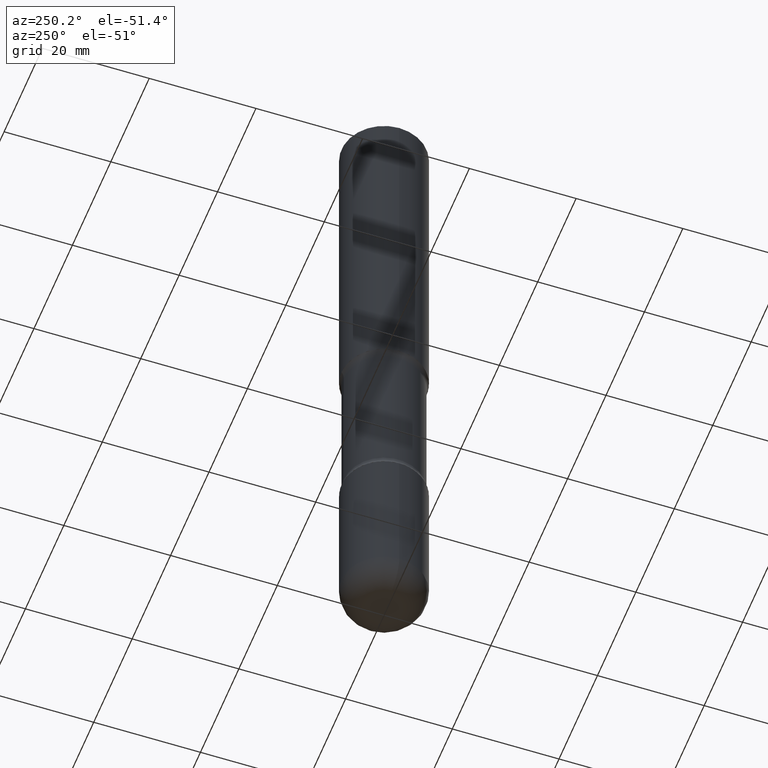
[diagram: clean part render]
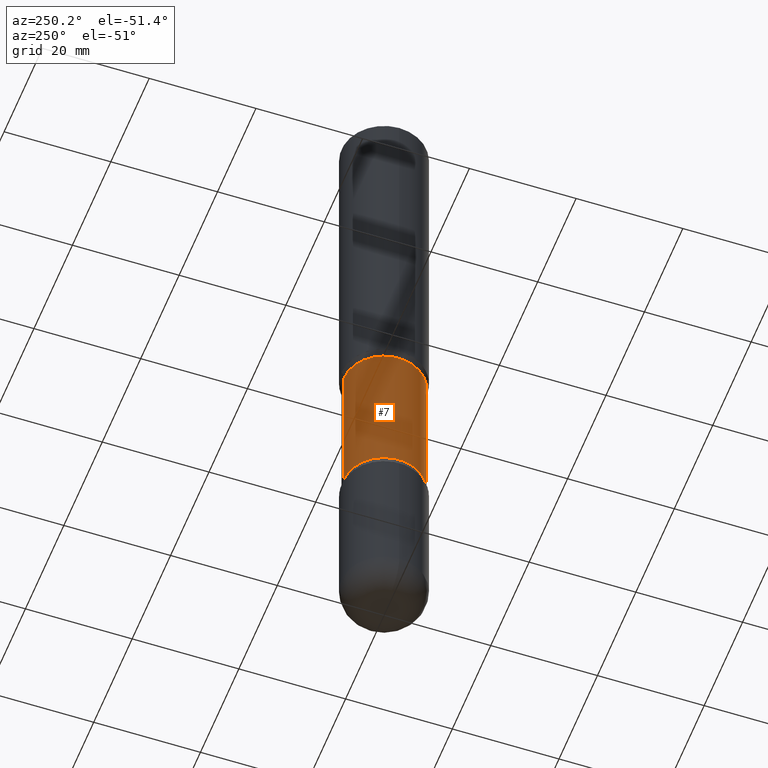
[diagram: same view with one face highlighted and labeled with its STEP entity id]
A machine part, auxiliary view. The second image highlights one B-rep face of the part: STEP entity #7.
In plain terms, the highlighted cylindrical surface (partial cylindrical patch) has radius 7.5406 mm, axis along (0, -0, -1).
Its self-contained STEP definition (entity closure, byte-faithful):
#2 = EDGE_CURVE ( 'NONE', #33, #457, #225, .T. ) ;
#7 = ADVANCED_FACE ( 'NONE', ( #261 ), #96, .T. ) ;
#12 = CARTESIAN_POINT ( 'NONE',  ( 2.073067044938200360E-15, 0.2968749999999871214, -3.689484635215509289 ) ) ;
#14 = CARTESIAN_POINT ( 'NONE',  ( 2.073067044938233492E-15, 0.2968749999999827360, -5.000000000000000888 ) ) ;
#26 = DIRECTION ( 'NONE',  ( 2.521457479434076939E-29, -3.382661233743975076E-15, -1.000000000000000000 ) ) ;
#33 = VERTEX_POINT ( 'NONE', #477 ) ;
#44 = CARTESIAN_POINT ( 'NONE',  ( -2.090307983695953569E-15, -0.2968750000000091038, -2.560515364784489822 ) ) ;
#46 = EDGE_CURVE ( 'NONE', #215, #33, #297, .T. ) ;
#49 = CARTESIAN_POINT ( 'NONE',  ( 6.171273093058203090E-29, -9.069431456984199816E-15, -2.560515364784490711 ) ) ;
#67 = CARTESIAN_POINT ( 'NONE',  ( -2.036710343088299976E-15, -0.2968750000000173195, -4.999999999999999112 ) ) ;
#86 = DIRECTION ( 'NONE',  ( 2.521457479434076939E-29, -3.382661233743975076E-15, -1.000000000000000000 ) ) ;
#96 = CYLINDRICAL_SURFACE ( 'NONE', #152, 0.2968750000000000000 ) ;
#112 = DIRECTION ( 'NONE',  ( 2.521457479434076939E-29, -3.382661233743974681E-15, -1.000000000000000000 ) ) ;
#119 = VECTOR ( 'NONE', #112, 39.37007874015748143 ) ;
#152 = AXIS2_PLACEMENT_3D ( 'NONE', #212, #440, #519 ) ;
#180 = EDGE_LOOP ( 'NONE', ( #204, #482, #308, #340 ) ) ;
#188 = VECTOR ( 'NONE', #489, 39.37007874015748143 ) ;
#204 = ORIENTED_EDGE ( 'NONE', *, *, #46, .F. ) ;
#212 = CARTESIAN_POINT ( 'NONE',  ( 1.232232987248685960E-28, -1.732138156284176685E-14, -5.000000000000000000 ) ) ;
#213 = EDGE_CURVE ( 'NONE', #215, #550, #267, .T. ) ;
#215 = VERTEX_POINT ( 'NONE', #44 ) ;
#225 = CIRCLE ( 'NONE', #532, 0.2968750000000000000 ) ;
#261 = FACE_OUTER_BOUND ( 'NONE', #180, .T. ) ;
#267 = CIRCLE ( 'NONE', #492, 0.2968750000000000000 ) ;
#297 = LINE ( 'NONE', #67, #119 ) ;
#308 = ORIENTED_EDGE ( 'NONE', *, *, #445, .T. ) ;
#340 = ORIENTED_EDGE ( 'NONE', *, *, #2, .F. ) ;
#419 = CARTESIAN_POINT ( 'NONE',  ( 9.017921104037724021E-29, -1.288835204215942242E-14, -3.689484635215508401 ) ) ;
#434 = DIRECTION ( 'NONE',  ( 6.982962677686266711E-15, 1.000000000000000000, -3.680805717779217644E-15 ) ) ;
#440 = DIRECTION ( 'NONE',  ( 2.521457479434076939E-29, -3.382661233743975076E-15, -1.000000000000000000 ) ) ;
#445 = EDGE_CURVE ( 'NONE', #550, #457, #497, .T. ) ;
#457 = VERTEX_POINT ( 'NONE', #12 ) ;
#477 = CARTESIAN_POINT ( 'NONE',  ( -2.090307983695922804E-15, -0.2968750000000128786, -3.689484635215507069 ) ) ;
#482 = ORIENTED_EDGE ( 'NONE', *, *, #213, .T. ) ;
#489 = DIRECTION ( 'NONE',  ( 2.521457479434076939E-29, -3.382661233743974681E-15, -1.000000000000000000 ) ) ;
#492 = AXIS2_PLACEMENT_3D ( 'NONE', #49, #86, #434 ) ;
#497 = LINE ( 'NONE', #14, #188 ) ;
#519 = DIRECTION ( 'NONE',  ( 6.982962677686266711E-15, 1.000000000000000000, -3.680805717779217644E-15 ) ) ;
#521 = CARTESIAN_POINT ( 'NONE',  ( 2.073067044938171961E-15, 0.2968749999999909517, -2.560515364784492043 ) ) ;
#532 = AXIS2_PLACEMENT_3D ( 'NONE', #419, #26, #560 ) ;
#550 = VERTEX_POINT ( 'NONE', #521 ) ;
#560 = DIRECTION ( 'NONE',  ( 6.982962677686265133E-15, 1.000000000000000000, -3.680805717779217644E-15 ) ) ;